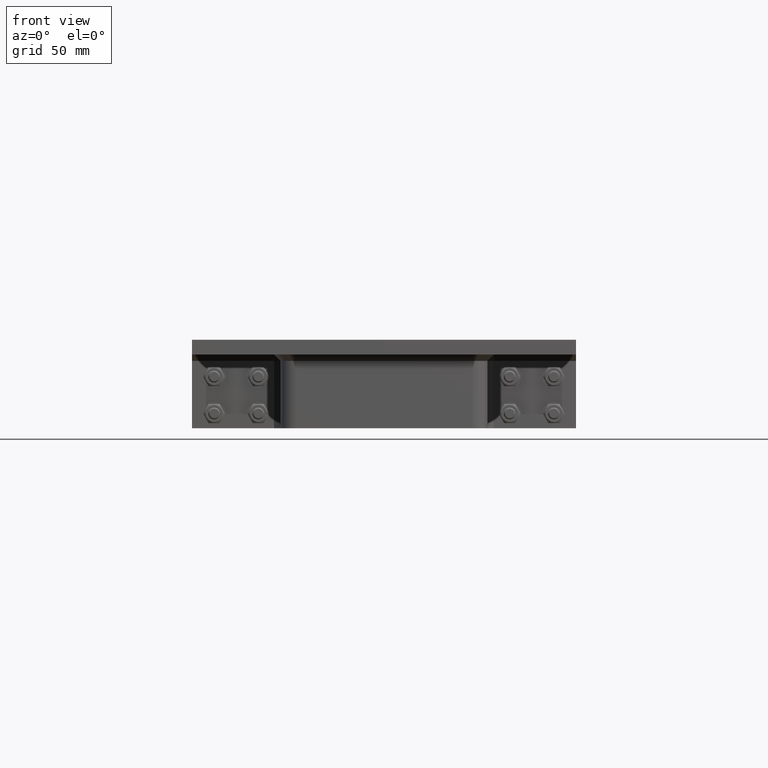
[diagram: clean part render]
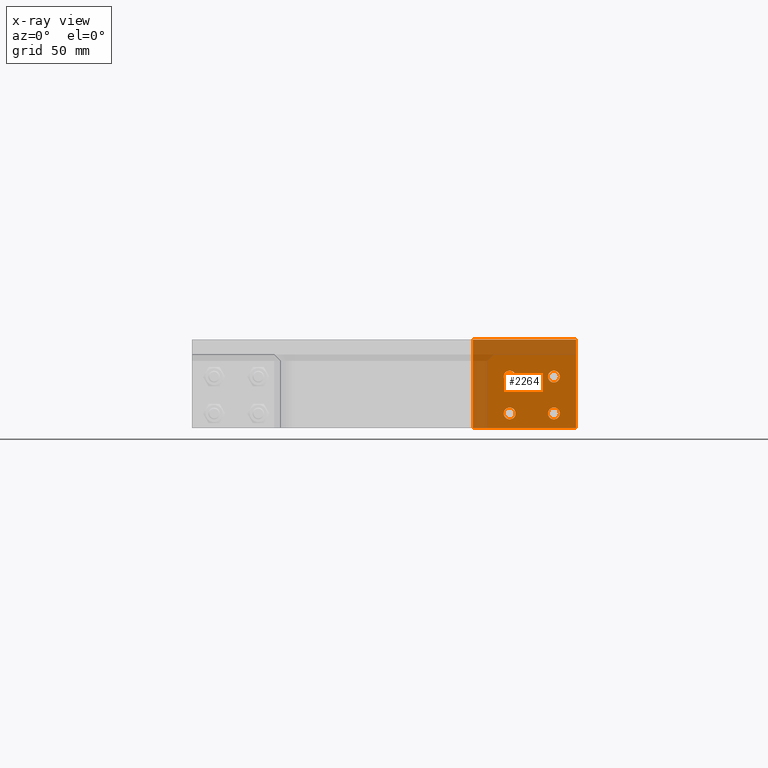
[diagram: x-ray — body ghosted, one internal face saturated and labeled with its STEP entity id]
A machine part, front view, then the same camera in x-ray: the body is ghosted and one INTERNAL B-rep face — a face not visible from any outside direction — is saturated and labeled: STEP entity #2264.
In plain terms, the highlighted planar face has unit normal (0, 1, -0).
Its self-contained STEP definition (entity closure, byte-faithful):
#228=FACE_BOUND('',#617,.T.);
#229=FACE_BOUND('',#618,.T.);
#230=FACE_BOUND('',#619,.T.);
#231=FACE_BOUND('',#620,.T.);
#313=CIRCLE('',#2615,4.);
#315=CIRCLE('',#2618,4.);
#317=CIRCLE('',#2621,4.);
#319=CIRCLE('',#2624,4.);
#438=FACE_OUTER_BOUND('',#616,.T.);
#616=EDGE_LOOP('',(#1910,#1911,#1912,#1913));
#617=EDGE_LOOP('',(#1914));
#618=EDGE_LOOP('',(#1915));
#619=EDGE_LOOP('',(#1916));
#620=EDGE_LOOP('',(#1917));
#804=LINE('',#3786,#978);
#808=LINE('',#3794,#982);
#811=LINE('',#3800,#985);
#814=LINE('',#3805,#988);
#978=VECTOR('',#3137,10.);
#982=VECTOR('',#3143,10.);
#985=VECTOR('',#3148,10.);
#988=VECTOR('',#3153,10.);
#1149=VERTEX_POINT('',#3762);
#1151=VERTEX_POINT('',#3768);
#1153=VERTEX_POINT('',#3774);
#1155=VERTEX_POINT('',#3780);
#1156=VERTEX_POINT('',#3784);
#1157=VERTEX_POINT('',#3785);
#1160=VERTEX_POINT('',#3793);
#1162=VERTEX_POINT('',#3799);
#1405=EDGE_CURVE('',#1149,#1149,#313,.T.);
#1408=EDGE_CURVE('',#1151,#1151,#315,.T.);
#1411=EDGE_CURVE('',#1153,#1153,#317,.T.);
#1414=EDGE_CURVE('',#1155,#1155,#319,.T.);
#1415=EDGE_CURVE('',#1156,#1157,#804,.T.);
#1419=EDGE_CURVE('',#1157,#1160,#808,.T.);
#1422=EDGE_CURVE('',#1160,#1162,#811,.T.);
#1425=EDGE_CURVE('',#1162,#1156,#814,.T.);
#1910=ORIENTED_EDGE('',*,*,#1425,.T.);
#1911=ORIENTED_EDGE('',*,*,#1415,.T.);
#1912=ORIENTED_EDGE('',*,*,#1419,.T.);
#1913=ORIENTED_EDGE('',*,*,#1422,.T.);
#1914=ORIENTED_EDGE('',*,*,#1405,.T.);
#1915=ORIENTED_EDGE('',*,*,#1408,.T.);
#1916=ORIENTED_EDGE('',*,*,#1411,.T.);
#1917=ORIENTED_EDGE('',*,*,#1414,.T.);
#2162=PLANE('',#2629);
#2264=ADVANCED_FACE('',(#438,#228,#229,#230,#231),#2162,.F.);
#2615=AXIS2_PLACEMENT_3D('',#3764,#3112,#3113);
#2618=AXIS2_PLACEMENT_3D('',#3770,#3119,#3120);
#2621=AXIS2_PLACEMENT_3D('',#3776,#3126,#3127);
#2624=AXIS2_PLACEMENT_3D('',#3782,#3133,#3134);
#2629=AXIS2_PLACEMENT_3D('',#3807,#3155,#3156);
#3112=DIRECTION('center_axis',(0.,0.,1.));
#3113=DIRECTION('ref_axis',(1.,0.,0.));
#3119=DIRECTION('center_axis',(0.,0.,1.));
#3120=DIRECTION('ref_axis',(1.,0.,0.));
#3126=DIRECTION('center_axis',(0.,0.,1.));
#3127=DIRECTION('ref_axis',(1.,0.,0.));
#3133=DIRECTION('center_axis',(0.,0.,1.));
#3134=DIRECTION('ref_axis',(1.,0.,0.));
#3137=DIRECTION('',(2.22044604925031E-16,-1.,0.));
#3143=DIRECTION('',(-1.,0.,0.));
#3148=DIRECTION('',(2.22044604925031E-16,1.,0.));
#3153=DIRECTION('',(1.,0.,0.));
#3155=DIRECTION('center_axis',(0.,0.,1.));
#3156=DIRECTION('ref_axis',(1.,0.,0.));
#3762=CARTESIAN_POINT('',(6.,-20.,0.));
#3764=CARTESIAN_POINT('Origin',(10.,-20.,0.));
#3768=CARTESIAN_POINT('',(-24.,5.00000000000001,0.));
#3770=CARTESIAN_POINT('Origin',(-20.,5.00000000000001,0.));
#3774=CARTESIAN_POINT('',(6.,5.00000000000001,0.));
#3776=CARTESIAN_POINT('Origin',(10.,5.00000000000001,0.));
#3780=CARTESIAN_POINT('',(-24.,-20.,0.));
#3782=CARTESIAN_POINT('Origin',(-20.,-20.,0.));
#3784=CARTESIAN_POINT('',(35.,30.,0.));
#3785=CARTESIAN_POINT('',(35.,-30.,0.));
#3786=CARTESIAN_POINT('',(35.,30.,0.));
#3793=CARTESIAN_POINT('',(-35.,-30.,0.));
#3794=CARTESIAN_POINT('',(35.,-30.,0.));
#3799=CARTESIAN_POINT('',(-35.,30.,0.));
#3800=CARTESIAN_POINT('',(-35.,-30.,0.));
#3805=CARTESIAN_POINT('',(-35.,30.,0.));
#3807=CARTESIAN_POINT('Origin',(0.,5.12410626750072E-15,0.));